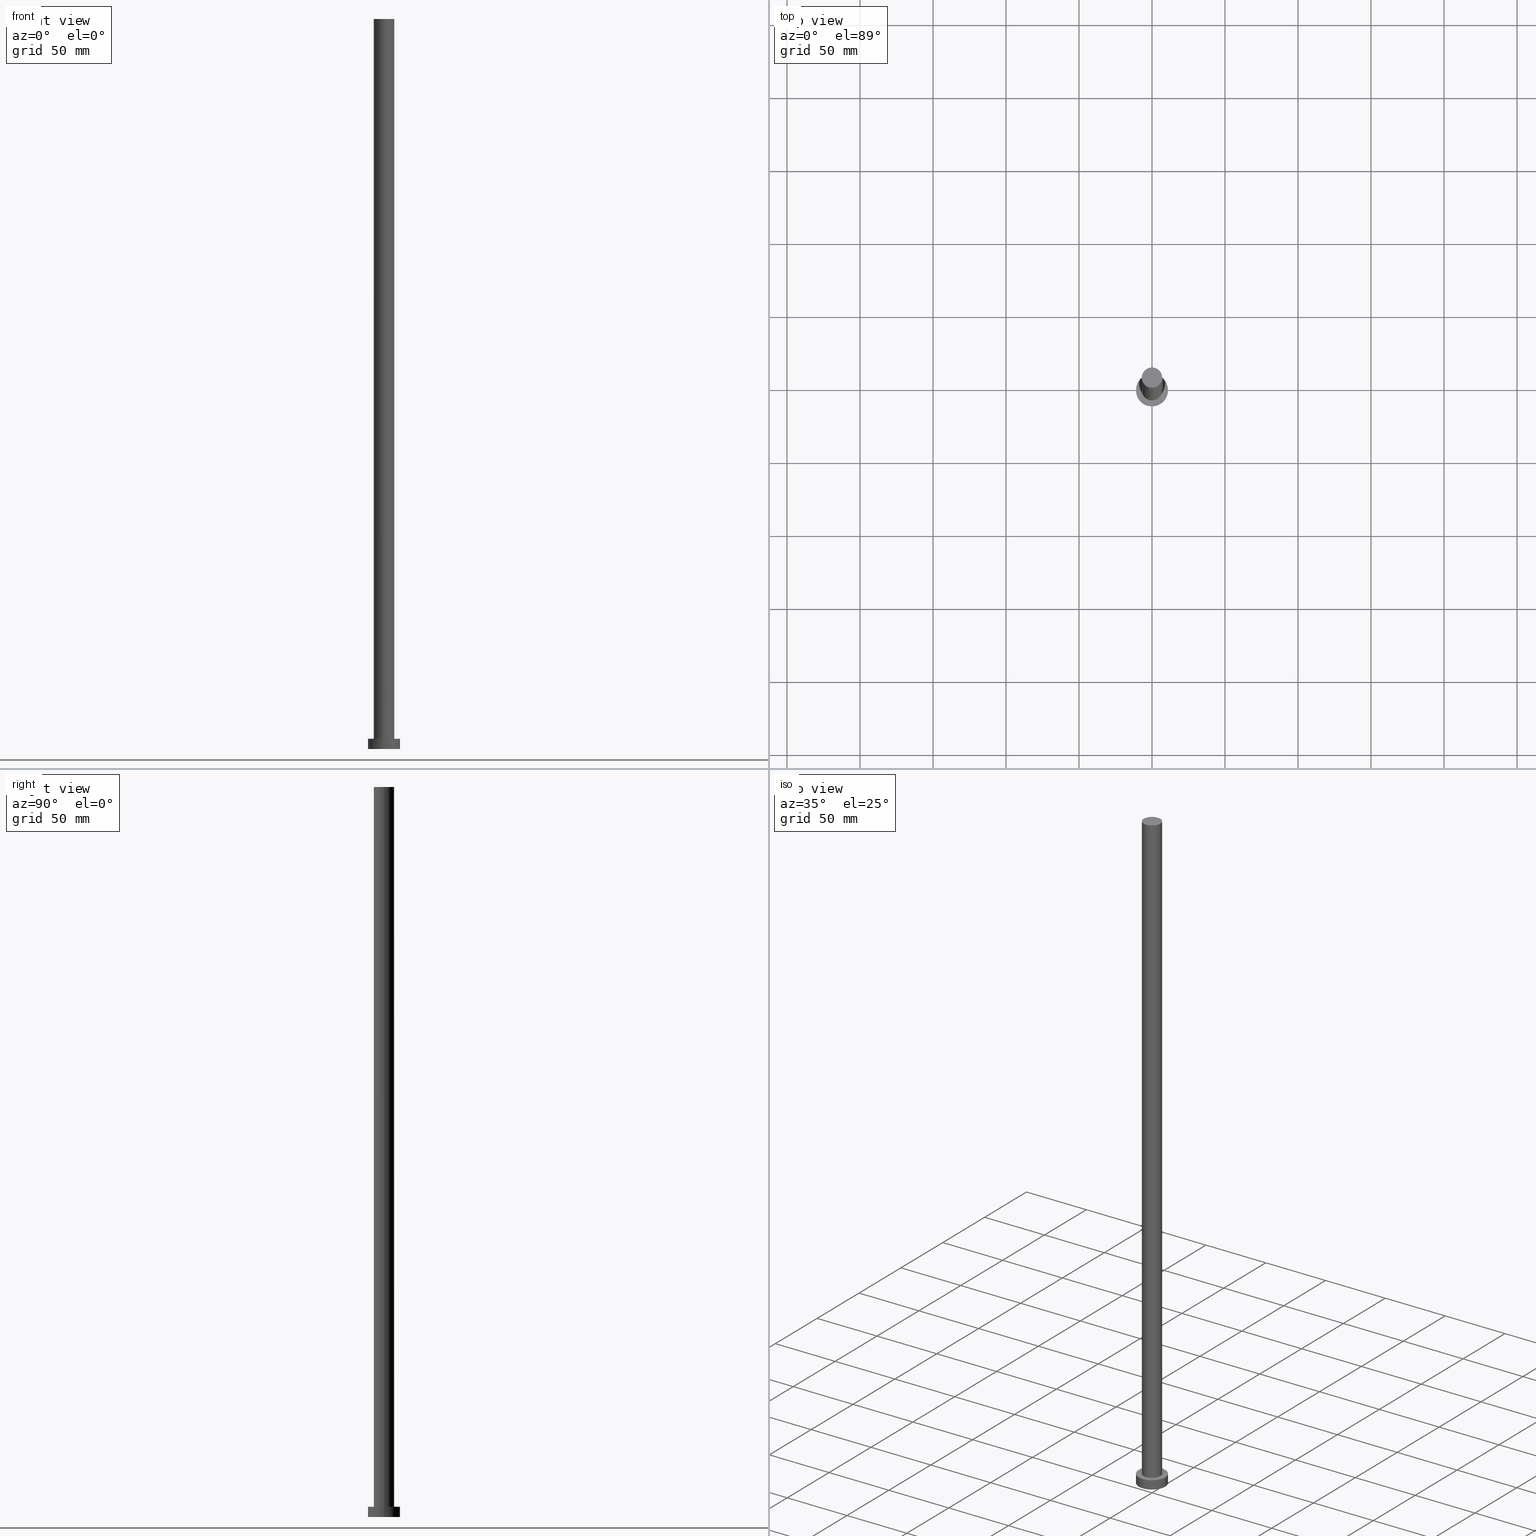
[diagram: canonical four-view strip — front | top / right | iso, engineering-drawing reading convention]
A machine part, canonical four-view strip (front | top / right | iso — engineering-drawing reading convention). The complete STEP part file that produces these views, byte-faithful:
ISO-10303-21;
HEADER;
FILE_DESCRIPTION (( 'STEP AP203' ),
    '1' );
FILE_NAME ('24ed.STEP',
    '2023-02-13T09:22:27',
    ( '' ),
    ( '' ),
    'SwSTEP 2.0',
    'SolidWorks 2019',
    '' );
FILE_SCHEMA (( 'CONFIG_CONTROL_DESIGN' ));
ENDSEC;

DATA;
#1 = DIRECTION ( 'NONE',  ( 1.000000000000000000, 0.000000000000000000, -0.000000000000000000 ) ) ;
#2 = DIRECTION ( 'NONE',  ( 0.000000000000000000, 0.000000000000000000, 1.000000000000000000 ) ) ;
#3 = DIRECTION ( 'NONE',  ( 0.000000000000000000, 0.000000000000000000, 1.000000000000000000 ) ) ;
#4 = CARTESIAN_POINT ( 'NONE',  ( 0.000000000000000000, 0.000000000000000000, 0.000000000000000000 ) ) ;
#5 = CC_DESIGN_APPROVAL ( #126, ( #43 ) ) ;
#6 = DIRECTION ( 'NONE',  ( 0.000000000000000000, 0.000000000000000000, 1.000000000000000000 ) ) ;
#7 = APPROVAL_ROLE ( '' ) ;
#8 = ADVANCED_FACE ( 'NONE', ( #66 ), #250, .T. ) ;
#9 = ORIENTED_EDGE ( 'NONE', *, *, #190, .T. ) ;
#10 = APPROVAL_STATUS ( 'not_yet_approved' ) ;
#11 = AXIS2_PLACEMENT_3D ( 'NONE', #133, #52, #1 ) ;
#12 = EDGE_CURVE ( 'NONE', #61, #51, #13, .T. ) ;
#13 = CIRCLE ( 'NONE', #114, 11.00000000000000000 ) ;
#14 = APPROVAL ( #70, 'NEUR�EN�' ) ;
#15 = MECHANICAL_CONTEXT ( 'NONE', #99, 'mechanical' ) ;
#16 = MANIFOLD_SOLID_BREP ( 'P�idat vysunut�m3', #47 ) ;
#17 = CARTESIAN_POINT ( 'NONE',  ( 0.000000000000000000, 0.000000000000000000, 7.000000000000000000 ) ) ;
#18 = ORIENTED_EDGE ( 'NONE', *, *, #159, .T. ) ;
#19 = ORGANIZATION ( 'NEUR�EN�', 'NEUR�EN�', '' ) ;
#20 = DIRECTION ( 'NONE',  ( 0.000000000000000000, 0.000000000000000000, 1.000000000000000000 ) ) ;
#21 =( NAMED_UNIT ( * ) SI_UNIT ( $, .STERADIAN. ) SOLID_ANGLE_UNIT ( ) );
#22 = CARTESIAN_POINT ( 'NONE',  ( -7.000000000000000888, 0.000000000000000000, 7.000000000000000000 ) ) ;
#23 = LINE ( 'NONE', #233, #25 ) ;
#24 = COORDINATED_UNIVERSAL_TIME_OFFSET ( 1, 0, .AHEAD. ) ;
#25 = VECTOR ( 'NONE', #154, 1000.000000000000000 ) ;
#26 = SHAPE_DEFINITION_REPRESENTATION ( #35, #146 ) ;
#27 = DESIGN_CONTEXT ( 'detailed design', #168, 'design' ) ;
#28 = CARTESIAN_POINT ( 'NONE',  ( 0.000000000000000000, 0.000000000000000000, 7.000000000000000000 ) ) ;
#29 = EDGE_CURVE ( 'NONE', #88, #165, #209, .T. ) ;
#30 = AXIS2_PLACEMENT_3D ( 'NONE', #110, #195, #170 ) ;
#31 = FACE_OUTER_BOUND ( 'NONE', #205, .T. ) ;
#32 = ORIENTED_EDGE ( 'NONE', *, *, #12, .F. ) ;
#33 = CARTESIAN_POINT ( 'NONE',  ( 0.000000000000000000, 0.000000000000000000, 0.000000000000000000 ) ) ;
#34 = CARTESIAN_POINT ( 'NONE',  ( 0.000000000000000000, 0.000000000000000000, 7.000000000000000000 ) ) ;
#35 = PRODUCT_DEFINITION_SHAPE ( 'NONE', 'NONE',  #82 ) ;
#36 = PERSON_AND_ORGANIZATION_ROLE ( 'design_owner' ) ;
#37 = DIRECTION ( 'NONE',  ( 1.000000000000000000, 0.000000000000000000, 0.000000000000000000 ) ) ;
#38 = FACE_OUTER_BOUND ( 'NONE', #97, .T. ) ;
#39 = DIRECTION ( 'NONE',  ( 0.000000000000000000, 0.000000000000000000, 1.000000000000000000 ) ) ;
#40 = AXIS2_PLACEMENT_3D ( 'NONE', #235, #145, #90 ) ;
#41 = CARTESIAN_POINT ( 'NONE',  ( 11.00000000000000000, 1.347111479062088405E-15, 7.000000000000000000 ) ) ;
#42 = DATE_AND_TIME ( #102, #246 ) ;
#43 = PRODUCT_DEFINITION_FORMATION_WITH_SPECIFIED_SOURCE ( 'LIBOVOLN�', '', #144, .NOT_KNOWN. ) ;
#44 = PERSON_AND_ORGANIZATION ( #251, #19 ) ;
#45 = APPROVAL_PERSON_ORGANIZATION ( #253, #14, #196 ) ;
#46 = ORIENTED_EDGE ( 'NONE', *, *, #29, .T. ) ;
#47 = CLOSED_SHELL ( 'NONE', ( #48, #219, #249, #234, #76, #229, #8 ) ) ;
#48 = ADVANCED_FACE ( 'NONE', ( #31 ), #68, .T. ) ;
#49 = ORIENTED_EDGE ( 'NONE', *, *, #29, .F. ) ;
#50 = CARTESIAN_POINT ( 'NONE',  ( 0.000000000000000000, 0.000000000000000000, 7.000000000000000000 ) ) ;
#51 = VERTEX_POINT ( 'NONE', #174 ) ;
#52 = DIRECTION ( 'NONE',  ( 0.000000000000000000, 0.000000000000000000, 1.000000000000000000 ) ) ;
#53 = FACE_BOUND ( 'NONE', #207, .T. ) ;
#54 = DIRECTION ( 'NONE',  ( 1.000000000000000000, 0.000000000000000000, 0.000000000000000000 ) ) ;
#55 = EDGE_CURVE ( 'NONE', #61, #186, #117, .T. ) ;
#56 = DATE_TIME_ROLE ( 'creation_date' ) ;
#57 = DIRECTION ( 'NONE',  ( -0.000000000000000000, -0.000000000000000000, -1.000000000000000000 ) ) ;
#58 = COORDINATED_UNIVERSAL_TIME_OFFSET ( 1, 0, .AHEAD. ) ;
#59 = EDGE_LOOP ( 'NONE', ( #252, #208 ) ) ;
#60 = CC_DESIGN_APPROVAL ( #225, ( #157 ) ) ;
#61 = VERTEX_POINT ( 'NONE', #155 ) ;
#62 = EDGE_CURVE ( 'NONE', #165, #120, #64, .T. ) ;
#63 = VERTEX_POINT ( 'NONE', #224 ) ;
#64 = CIRCLE ( 'NONE', #184, 7.000000000000000888 ) ;
#65 = LOCAL_TIME ( 10, 22, 27.00000000000000000, #24 ) ;
#66 = FACE_OUTER_BOUND ( 'NONE', #211, .T. ) ;
#67 = EDGE_CURVE ( 'NONE', #120, #165, #226, .T. ) ;
#68 = CYLINDRICAL_SURFACE ( 'NONE', #40, 7.000000000000000888 ) ;
#69 = UNCERTAINTY_MEASURE_WITH_UNIT (LENGTH_MEASURE( 1.000000000000000082E-05 ), #212, 'distance_accuracy_value', 'NONE');
#70 = APPROVAL_STATUS ( 'not_yet_approved' ) ;
#71 = CARTESIAN_POINT ( 'NONE',  ( -11.00000000000000000, 0.000000000000000000, 0.000000000000000000 ) ) ;
#72 = CARTESIAN_POINT ( 'NONE',  ( 0.000000000000000000, 0.000000000000000000, 500.0000000000000000 ) ) ;
#73 = DIRECTION ( 'NONE',  ( 1.000000000000000000, 0.000000000000000000, 0.000000000000000000 ) ) ;
#74 = DATE_AND_TIME ( #89, #164 ) ;
#75 = DIRECTION ( 'NONE',  ( 1.000000000000000000, 0.000000000000000000, 0.000000000000000000 ) ) ;
#76 = ADVANCED_FACE ( 'NONE', ( #87 ), #91, .F. ) ;
#77 = CARTESIAN_POINT ( 'NONE',  ( 11.00000000000000000, 1.347111479062088405E-15, 0.000000000000000000 ) ) ;
#78 = AXIS2_PLACEMENT_3D ( 'NONE', #72, #143, #124 ) ;
#79 = PERSON_AND_ORGANIZATION_ROLE ( 'design_supplier' ) ;
#80 = ORIENTED_EDGE ( 'NONE', *, *, #86, .F. ) ;
#81 = CC_DESIGN_PERSON_AND_ORGANIZATION_ASSIGNMENT ( #44, #158, ( #157 ) ) ;
#82 = PRODUCT_DEFINITION ( 'NEZN�M�', '', #43, #27 ) ;
#83 = ORIENTED_EDGE ( 'NONE', *, *, #245, .F. ) ;
#84 = CIRCLE ( 'NONE', #107, 11.00000000000000000 ) ;
#85 = VERTEX_POINT ( 'NONE', #71 ) ;
#86 = EDGE_CURVE ( 'NONE', #51, #85, #150, .T. ) ;
#87 = FACE_OUTER_BOUND ( 'NONE', #103, .T. ) ;
#88 = VERTEX_POINT ( 'NONE', #215 ) ;
#89 = CALENDAR_DATE ( 2023, 13, 2 ) ;
#90 = DIRECTION ( 'NONE',  ( -1.000000000000000000, 0.000000000000000000, 0.000000000000000000 ) ) ;
#91 = PLANE ( 'NONE',  #214 ) ;
#92 = PLANE ( 'NONE',  #11 ) ;
#93 = APPLICATION_PROTOCOL_DEFINITION ( 'international standard', 'config_control_design', 1994, #99 ) ;
#94 = PERSON_AND_ORGANIZATION ( #251, #19 ) ;
#95 = VECTOR ( 'NONE', #127, 1000.000000000000000 ) ;
#96 = CALENDAR_DATE ( 2023, 13, 2 ) ;
#97 = EDGE_LOOP ( 'NONE', ( #121, #161, #139, #18 ) ) ;
#98 = DATE_AND_TIME ( #181, #187 ) ;
#99 = APPLICATION_CONTEXT ( 'configuration controlled 3d designs of mechanical parts and assemblies' ) ;
#100 = APPROVAL_DATE_TIME ( #98, #126 ) ;
#101 = CC_DESIGN_PERSON_AND_ORGANIZATION_ASSIGNMENT ( #169, #36, ( #144 ) ) ;
#102 = CALENDAR_DATE ( 2023, 13, 2 ) ;
#103 = EDGE_LOOP ( 'NONE', ( #213, #160 ) ) ;
#104 = EDGE_CURVE ( 'NONE', #51, #61, #136, .T. ) ;
#105 = DIRECTION ( 'NONE',  ( 0.000000000000000000, 0.000000000000000000, 1.000000000000000000 ) ) ;
#106 = FACE_OUTER_BOUND ( 'NONE', #182, .T. ) ;
#107 = AXIS2_PLACEMENT_3D ( 'NONE', #220, #39, #37 ) ;
#108 = ORIENTED_EDGE ( 'NONE', *, *, #180, .T. ) ;
#109 = DIRECTION ( 'NONE',  ( 0.000000000000000000, 0.000000000000000000, 1.000000000000000000 ) ) ;
#110 = CARTESIAN_POINT ( 'NONE',  ( 0.000000000000000000, 0.000000000000000000, 7.000000000000000000 ) ) ;
#111 = DIRECTION ( 'NONE',  ( 1.000000000000000000, 0.000000000000000000, -0.000000000000000000 ) ) ;
#112 = FACE_OUTER_BOUND ( 'NONE', #59, .T. ) ;
#113 = DIRECTION ( 'NONE',  ( 1.000000000000000000, 0.000000000000000000, 0.000000000000000000 ) ) ;
#114 = AXIS2_PLACEMENT_3D ( 'NONE', #28, #105, #191 ) ;
#115 = DIRECTION ( 'NONE',  ( -0.000000000000000000, -0.000000000000000000, -1.000000000000000000 ) ) ;
#116 = CC_DESIGN_SECURITY_CLASSIFICATION ( #157, ( #43 ) ) ;
#117 = LINE ( 'NONE', #41, #142 ) ;
#118 = CC_DESIGN_PERSON_AND_ORGANIZATION_ASSIGNMENT ( #162, #239, ( #43 ) ) ;
#119 = CALENDAR_DATE ( 2023, 13, 2 ) ;
#120 = VERTEX_POINT ( 'NONE', #132 ) ;
#121 = ORIENTED_EDGE ( 'NONE', *, *, #55, .F. ) ;
#122 = CC_DESIGN_DATE_AND_TIME_ASSIGNMENT ( #137, #56, ( #82 ) ) ;
#123 = AXIS2_PLACEMENT_3D ( 'NONE', #33, #20, #131 ) ;
#124 = DIRECTION ( 'NONE',  ( 1.000000000000000000, 0.000000000000000000, -0.000000000000000000 ) ) ;
#125 = AXIS2_PLACEMENT_3D ( 'NONE', #177, #147, #153 ) ;
#126 = APPROVAL ( #179, 'NEUR�EN�' ) ;
#127 = DIRECTION ( 'NONE',  ( -0.000000000000000000, -0.000000000000000000, -1.000000000000000000 ) ) ;
#128 = ORIENTED_EDGE ( 'NONE', *, *, #166, .F. ) ;
#129 = DIRECTION ( 'NONE',  ( 1.000000000000000000, 0.000000000000000000, 0.000000000000000000 ) ) ;
#130 = DIRECTION ( 'NONE',  ( 0.000000000000000000, 0.000000000000000000, 1.000000000000000000 ) ) ;
#131 = DIRECTION ( 'NONE',  ( 1.000000000000000000, 0.000000000000000000, 0.000000000000000000 ) ) ;
#132 = CARTESIAN_POINT ( 'NONE',  ( 7.000000000000000888, 8.572527594031474176E-16, 7.000000000000000000 ) ) ;
#133 = CARTESIAN_POINT ( 'NONE',  ( 0.000000000000000000, 0.000000000000000000, 7.000000000000000000 ) ) ;
#134 = DIRECTION ( 'NONE',  ( 0.000000000000000000, 0.000000000000000000, 1.000000000000000000 ) ) ;
#135 = FACE_OUTER_BOUND ( 'NONE', #151, .T. ) ;
#136 = CIRCLE ( 'NONE', #238, 11.00000000000000000 ) ;
#137 = DATE_AND_TIME ( #96, #232 ) ;
#138 = CIRCLE ( 'NONE', #240, 7.000000000000000888 ) ;
#139 = ORIENTED_EDGE ( 'NONE', *, *, #86, .T. ) ;
#140 = CC_DESIGN_DATE_AND_TIME_ASSIGNMENT ( #42, #185, ( #157 ) ) ;
#141 = ORIENTED_EDGE ( 'NONE', *, *, #67, .F. ) ;
#142 = VECTOR ( 'NONE', #57, 1000.000000000000000 ) ;
#143 = DIRECTION ( 'NONE',  ( 0.000000000000000000, 0.000000000000000000, 1.000000000000000000 ) ) ;
#144 = PRODUCT ( '24ed', '24ed', '', ( #15 ) ) ;
#145 = DIRECTION ( 'NONE',  ( -0.000000000000000000, -0.000000000000000000, -1.000000000000000000 ) ) ;
#146 = ADVANCED_BREP_SHAPE_REPRESENTATION ( '24ed', ( #16, #123 ), #194 ) ;
#147 = DIRECTION ( 'NONE',  ( -0.000000000000000000, -0.000000000000000000, -1.000000000000000000 ) ) ;
#148 = ORIENTED_EDGE ( 'NONE', *, *, #166, .T. ) ;
#149 =( NAMED_UNIT ( * ) PLANE_ANGLE_UNIT ( ) SI_UNIT ( $, .RADIAN. ) );
#150 = LINE ( 'NONE', #218, #202 ) ;
#151 = EDGE_LOOP ( 'NONE', ( #163, #128, #46, #248 ) ) ;
#152 = DIRECTION ( 'NONE',  ( -1.000000000000000000, 0.000000000000000000, 0.000000000000000000 ) ) ;
#153 = DIRECTION ( 'NONE',  ( -1.000000000000000000, 0.000000000000000000, 0.000000000000000000 ) ) ;
#154 = DIRECTION ( 'NONE',  ( -0.000000000000000000, -0.000000000000000000, -1.000000000000000000 ) ) ;
#155 = CARTESIAN_POINT ( 'NONE',  ( 11.00000000000000000, 1.347111479062088405E-15, 7.000000000000000000 ) ) ;
#156 = COORDINATED_UNIVERSAL_TIME_OFFSET ( 1, 0, .AHEAD. ) ;
#157 = SECURITY_CLASSIFICATION ( '', '', #204 ) ;
#158 = PERSON_AND_ORGANIZATION_ROLE ( 'classification_officer' ) ;
#159 = EDGE_CURVE ( 'NONE', #85, #186, #84, .T. ) ;
#160 = ORIENTED_EDGE ( 'NONE', *, *, #180, .F. ) ;
#161 = ORIENTED_EDGE ( 'NONE', *, *, #104, .F. ) ;
#162 = PERSON_AND_ORGANIZATION ( #251, #19 ) ;
#163 = ORIENTED_EDGE ( 'NONE', *, *, #190, .F. ) ;
#164 = LOCAL_TIME ( 10, 22, 27.00000000000000000, #193 ) ;
#165 = VERTEX_POINT ( 'NONE', #22 ) ;
#166 = EDGE_CURVE ( 'NONE', #88, #63, #138, .T. ) ;
#167 = AXIS2_PLACEMENT_3D ( 'NONE', #221, #198, #129 ) ;
#168 = APPLICATION_CONTEXT ( 'configuration controlled 3d designs of mechanical parts and assemblies' ) ;
#169 = PERSON_AND_ORGANIZATION ( #251, #19 ) ;
#170 = DIRECTION ( 'NONE',  ( -1.000000000000000000, 0.000000000000000000, 0.000000000000000000 ) ) ;
#171 = APPLICATION_PROTOCOL_DEFINITION ( 'international standard', 'config_control_design', 1994, #168 ) ;
#172 = CARTESIAN_POINT ( 'NONE',  ( 0.000000000000000000, 0.000000000000000000, 500.0000000000000000 ) ) ;
#173 = CYLINDRICAL_SURFACE ( 'NONE', #230, 11.00000000000000000 ) ;
#174 = CARTESIAN_POINT ( 'NONE',  ( -11.00000000000000000, 0.000000000000000000, 7.000000000000000000 ) ) ;
#175 = CIRCLE ( 'NONE', #217, 11.00000000000000000 ) ;
#176 = CC_DESIGN_PERSON_AND_ORGANIZATION_ASSIGNMENT ( #206, #203, ( #82 ) ) ;
#177 = CARTESIAN_POINT ( 'NONE',  ( 0.000000000000000000, 0.000000000000000000, 500.0000000000000000 ) ) ;
#178 = PERSON_AND_ORGANIZATION ( #251, #19 ) ;
#179 = APPROVAL_STATUS ( 'not_yet_approved' ) ;
#180 = EDGE_CURVE ( 'NONE', #186, #85, #175, .T. ) ;
#181 = CALENDAR_DATE ( 2023, 13, 2 ) ;
#182 = EDGE_LOOP ( 'NONE', ( #32, #255, #108, #80 ) ) ;
#183 = PERSON_AND_ORGANIZATION ( #251, #19 ) ;
#184 = AXIS2_PLACEMENT_3D ( 'NONE', #241, #2, #73 ) ;
#185 = DATE_TIME_ROLE ( 'classification_date' ) ;
#186 = VERTEX_POINT ( 'NONE', #77 ) ;
#187 = LOCAL_TIME ( 10, 22, 27.00000000000000000, #58 ) ;
#188 = ORIENTED_EDGE ( 'NONE', *, *, #67, .T. ) ;
#189 = AXIS2_PLACEMENT_3D ( 'NONE', #17, #130, #113 ) ;
#190 = EDGE_CURVE ( 'NONE', #63, #120, #23, .T. ) ;
#191 = DIRECTION ( 'NONE',  ( 1.000000000000000000, 0.000000000000000000, 0.000000000000000000 ) ) ;
#192 = CYLINDRICAL_SURFACE ( 'NONE', #30, 11.00000000000000000 ) ;
#193 = COORDINATED_UNIVERSAL_TIME_OFFSET ( 1, 0, .AHEAD. ) ;
#194 =( GEOMETRIC_REPRESENTATION_CONTEXT ( 3 ) GLOBAL_UNCERTAINTY_ASSIGNED_CONTEXT ( ( #69 ) ) GLOBAL_UNIT_ASSIGNED_CONTEXT ( ( #212, #149, #21 ) ) REPRESENTATION_CONTEXT ( 'NONE', 'WORKASPACE' ) );
#195 = DIRECTION ( 'NONE',  ( -0.000000000000000000, -0.000000000000000000, -1.000000000000000000 ) ) ;
#196 = APPROVAL_ROLE ( '' ) ;
#197 = CC_DESIGN_PERSON_AND_ORGANIZATION_ASSIGNMENT ( #94, #79, ( #43 ) ) ;
#198 = DIRECTION ( 'NONE',  ( 0.000000000000000000, 0.000000000000000000, 1.000000000000000000 ) ) ;
#199 = CC_DESIGN_APPROVAL ( #14, ( #82 ) ) ;
#200 = DATE_AND_TIME ( #119, #65 ) ;
#201 = PRODUCT_RELATED_PRODUCT_CATEGORY ( 'detail', '', ( #144 ) ) ;
#202 = VECTOR ( 'NONE', #237, 1000.000000000000000 ) ;
#203 = PERSON_AND_ORGANIZATION_ROLE ( 'creator' ) ;
#204 = SECURITY_CLASSIFICATION_LEVEL ( 'unclassified' ) ;
#205 = EDGE_LOOP ( 'NONE', ( #83, #9, #188, #49 ) ) ;
#206 = PERSON_AND_ORGANIZATION ( #251, #19 ) ;
#207 = EDGE_LOOP ( 'NONE', ( #210, #141 ) ) ;
#208 = ORIENTED_EDGE ( 'NONE', *, *, #12, .T. ) ;
#209 = LINE ( 'NONE', #231, #95 ) ;
#210 = ORIENTED_EDGE ( 'NONE', *, *, #62, .F. ) ;
#211 = EDGE_LOOP ( 'NONE', ( #148, #243 ) ) ;
#212 =( LENGTH_UNIT ( ) NAMED_UNIT ( * ) SI_UNIT ( .MILLI., .METRE. ) );
#213 = ORIENTED_EDGE ( 'NONE', *, *, #159, .F. ) ;
#214 = AXIS2_PLACEMENT_3D ( 'NONE', #254, #109, #111 ) ;
#215 = CARTESIAN_POINT ( 'NONE',  ( -7.000000000000000888, 0.000000000000000000, 500.0000000000000000 ) ) ;
#216 = DIRECTION ( 'NONE',  ( 1.000000000000000000, 0.000000000000000000, 0.000000000000000000 ) ) ;
#217 = AXIS2_PLACEMENT_3D ( 'NONE', #4, #6, #216 ) ;
#218 = CARTESIAN_POINT ( 'NONE',  ( -11.00000000000000000, 0.000000000000000000, 7.000000000000000000 ) ) ;
#219 = ADVANCED_FACE ( 'NONE', ( #106 ), #192, .T. ) ;
#220 = CARTESIAN_POINT ( 'NONE',  ( 0.000000000000000000, 0.000000000000000000, 0.000000000000000000 ) ) ;
#221 = CARTESIAN_POINT ( 'NONE',  ( 0.000000000000000000, 0.000000000000000000, 500.0000000000000000 ) ) ;
#222 = APPROVAL_DATE_TIME ( #74, #14 ) ;
#223 = APPROVAL_PERSON_ORGANIZATION ( #183, #126, #7 ) ;
#224 = CARTESIAN_POINT ( 'NONE',  ( 7.000000000000000888, 8.572527594031474176E-16, 500.0000000000000000 ) ) ;
#225 = APPROVAL ( #10, 'NEUR�EN�' ) ;
#226 = CIRCLE ( 'NONE', #189, 7.000000000000000888 ) ;
#227 = APPROVAL_PERSON_ORGANIZATION ( #178, #225, #244 ) ;
#228 = COORDINATED_UNIVERSAL_TIME_OFFSET ( 1, 0, .AHEAD. ) ;
#229 = ADVANCED_FACE ( 'NONE', ( #135 ), #236, .T. ) ;
#230 = AXIS2_PLACEMENT_3D ( 'NONE', #50, #115, #152 ) ;
#231 = CARTESIAN_POINT ( 'NONE',  ( -7.000000000000000888, 0.000000000000000000, 500.0000000000000000 ) ) ;
#232 = LOCAL_TIME ( 10, 22, 27.00000000000000000, #228 ) ;
#233 = CARTESIAN_POINT ( 'NONE',  ( 7.000000000000000888, 8.572527594031474176E-16, 500.0000000000000000 ) ) ;
#234 = ADVANCED_FACE ( 'NONE', ( #53, #112 ), #92, .T. ) ;
#235 = CARTESIAN_POINT ( 'NONE',  ( 0.000000000000000000, 0.000000000000000000, 500.0000000000000000 ) ) ;
#236 = CYLINDRICAL_SURFACE ( 'NONE', #125, 7.000000000000000888 ) ;
#237 = DIRECTION ( 'NONE',  ( -0.000000000000000000, -0.000000000000000000, -1.000000000000000000 ) ) ;
#238 = AXIS2_PLACEMENT_3D ( 'NONE', #34, #134, #54 ) ;
#239 = PERSON_AND_ORGANIZATION_ROLE ( 'creator' ) ;
#240 = AXIS2_PLACEMENT_3D ( 'NONE', #172, #3, #75 ) ;
#241 = CARTESIAN_POINT ( 'NONE',  ( 0.000000000000000000, 0.000000000000000000, 7.000000000000000000 ) ) ;
#242 = APPROVAL_DATE_TIME ( #200, #225 ) ;
#243 = ORIENTED_EDGE ( 'NONE', *, *, #245, .T. ) ;
#244 = APPROVAL_ROLE ( '' ) ;
#245 = EDGE_CURVE ( 'NONE', #63, #88, #247, .T. ) ;
#246 = LOCAL_TIME ( 10, 22, 27.00000000000000000, #156 ) ;
#247 = CIRCLE ( 'NONE', #167, 7.000000000000000888 ) ;
#248 = ORIENTED_EDGE ( 'NONE', *, *, #62, .T. ) ;
#249 = ADVANCED_FACE ( 'NONE', ( #38 ), #173, .T. ) ;
#250 = PLANE ( 'NONE',  #78 ) ;
#251 = PERSON ( 'NEUR�EN�', 'NEUR�EN�', 'NEUR�EN�', ('NEUR�EN�'), ('NEUR�EN�'), ('NEUR�EN�') ) ;
#252 = ORIENTED_EDGE ( 'NONE', *, *, #104, .T. ) ;
#253 = PERSON_AND_ORGANIZATION ( #251, #19 ) ;
#254 = CARTESIAN_POINT ( 'NONE',  ( 0.000000000000000000, 0.000000000000000000, 0.000000000000000000 ) ) ;
#255 = ORIENTED_EDGE ( 'NONE', *, *, #55, .T. ) ;
ENDSEC;
END-ISO-10303-21;
